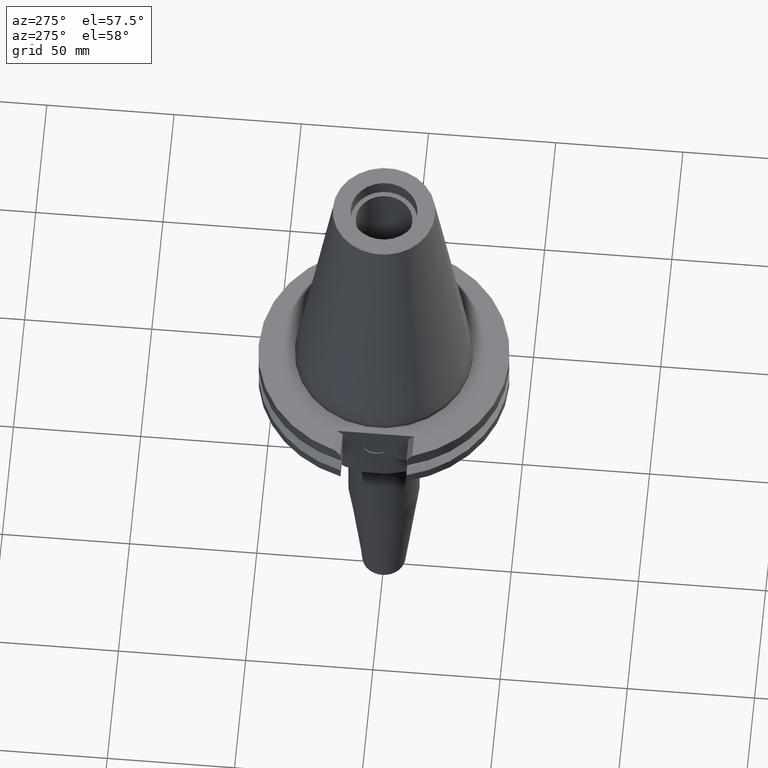
[diagram: clean part render]
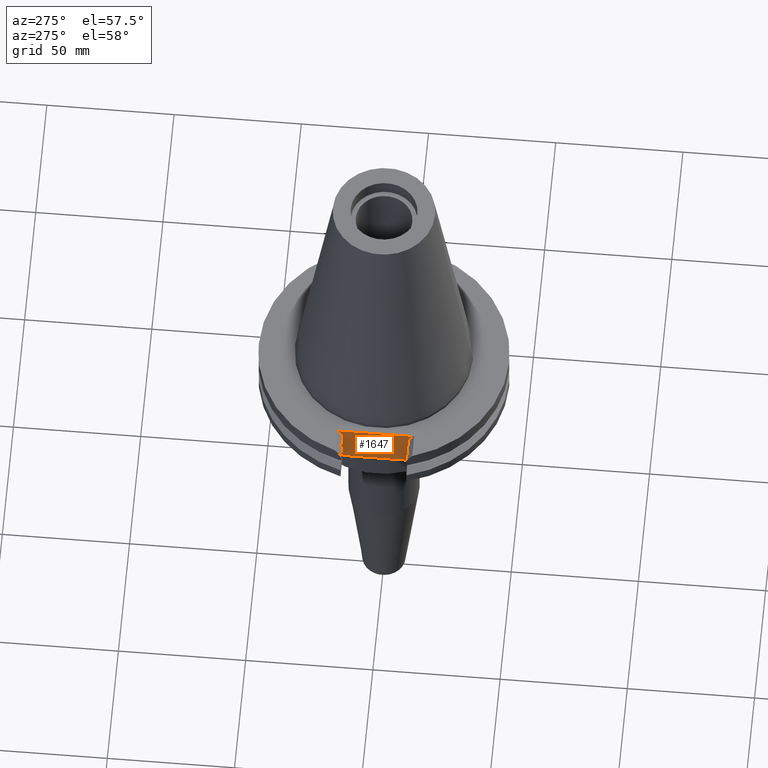
[diagram: same view with one face highlighted and labeled with its STEP entity id]
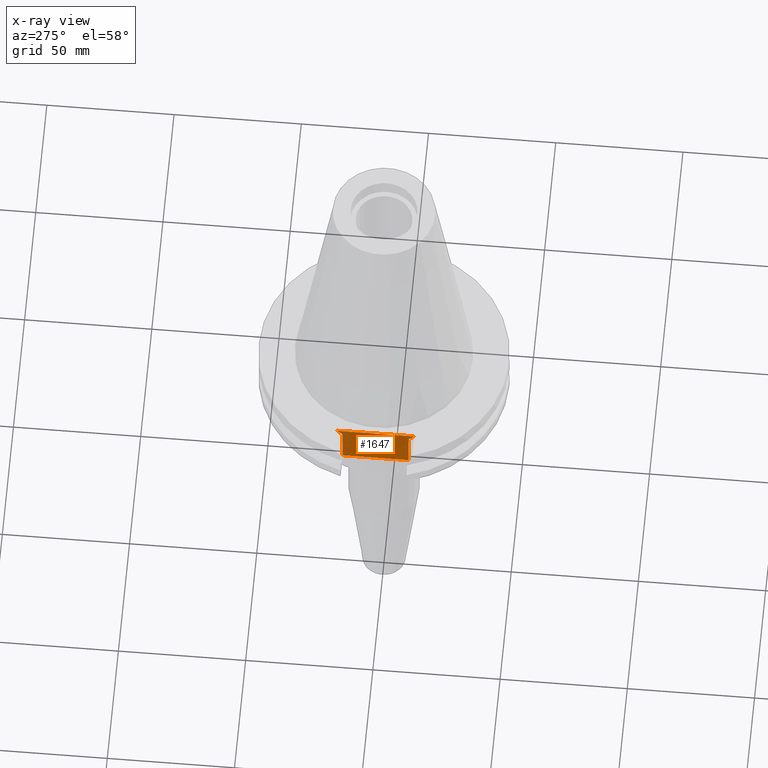
[diagram: x-ray of the same camera — body ghosted, the highlighted face saturated]
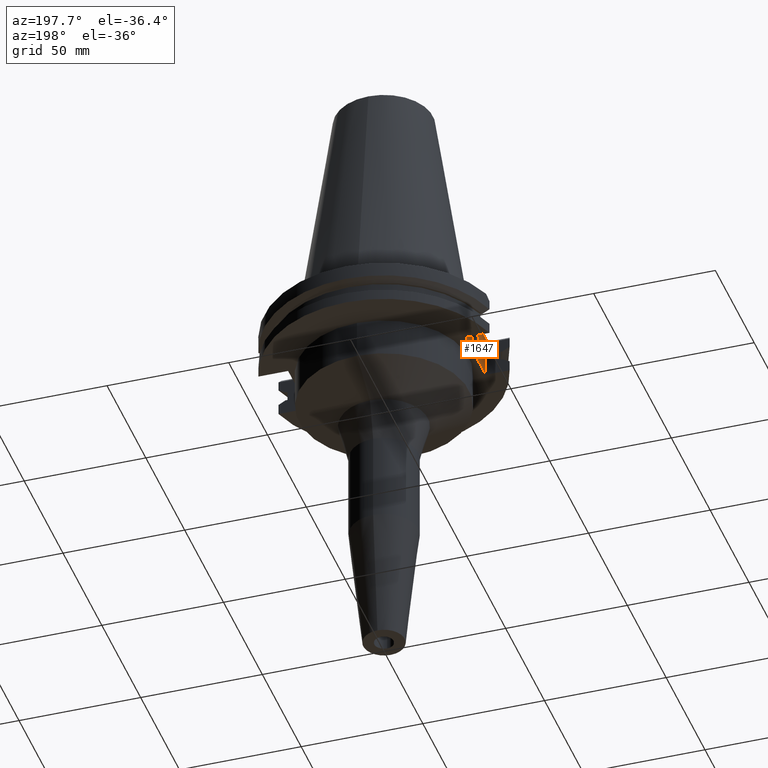
[diagram: same view with one face highlighted and labeled with its STEP entity id]
A machine part, auxiliary view. The second image highlights one B-rep face of the part: STEP entity #1647.
The next image is the same camera in x-ray: the body ghosted, the highlighted face saturated — about 0% of this face is hidden behind the body in this view.
A second angle (auxiliary view) of the same face is appended — the face is thin or edge-on in the first view.
In plain terms, the highlighted planar face has unit normal (1, 0, 0).
Its self-contained STEP definition (entity closure, byte-faithful):
#124=DIRECTION('',(0.E0,1.E0,0.E0));
#125=VECTOR('',#124,3.031E1);
#126=CARTESIAN_POINT('',(-3.768E1,-1.5155E1,-1.5E0));
#127=LINE('',#126,#125);
#318=DIRECTION('',(0.E0,1.E0,0.E0));
#319=VECTOR('',#318,2.591E1);
#320=CARTESIAN_POINT('',(-3.768E1,-1.2955E1,-1.905E1));
#321=LINE('',#320,#319);
#325=DIRECTION('',(0.E0,7.071067811865E-1,7.071067811865E-1));
#326=VECTOR('',#325,3.111269837221E0);
#327=CARTESIAN_POINT('',(-3.768E1,1.2955E1,-3.7E0));
#328=LINE('',#327,#326);
#332=DIRECTION('',(0.E0,7.071067811865E-1,-7.071067811865E-1));
#333=VECTOR('',#332,3.111269837221E0);
#334=CARTESIAN_POINT('',(-3.768E1,-1.5155E1,-1.5E0));
#335=LINE('',#334,#333);
#339=CARTESIAN_POINT('',(-3.768E1,0.E0,-1.118E1));
#340=DIRECTION('',(-1.E0,0.E0,0.E0));
#341=DIRECTION('',(0.E0,0.E0,1.E0));
#342=AXIS2_PLACEMENT_3D('',#339,#340,#341);
#347=CARTESIAN_POINT('',(-3.768E1,0.E0,-1.118E1));
#348=DIRECTION('',(-1.E0,0.E0,0.E0));
#349=DIRECTION('',(0.E0,0.E0,-1.E0));
#350=AXIS2_PLACEMENT_3D('',#347,#348,#349);
#376=DIRECTION('',(0.E0,0.E0,-1.E0));
#377=VECTOR('',#376,1.535E1);
#378=CARTESIAN_POINT('',(-3.768E1,1.2955E1,-3.7E0));
#379=LINE('',#378,#377);
#640=DIRECTION('',(0.E0,0.E0,1.E0));
#641=VECTOR('',#640,1.535E1);
#642=CARTESIAN_POINT('',(-3.768E1,-1.2955E1,-1.905E1));
#643=LINE('',#642,#641);
#1270=CARTESIAN_POINT('',(-3.768E1,1.2955E1,-1.905E1));
#1271=VERTEX_POINT('',#1270);
#1272=CARTESIAN_POINT('',(-3.768E1,-1.2955E1,-1.905E1));
#1273=VERTEX_POINT('',#1272);
#1310=CARTESIAN_POINT('',(-3.768E1,-1.2955E1,-3.7E0));
#1311=VERTEX_POINT('',#1310);
#1323=CARTESIAN_POINT('',(-3.768E1,1.2955E1,-3.7E0));
#1324=VERTEX_POINT('',#1323);
#1325=CARTESIAN_POINT('',(-3.768E1,1.5155E1,-1.5E0));
#1326=VERTEX_POINT('',#1325);
#1327=CARTESIAN_POINT('',(-3.768E1,-1.5155E1,-1.5E0));
#1328=VERTEX_POINT('',#1327);
#1329=CARTESIAN_POINT('',(-3.768E1,0.E0,-6.4175E0));
#1330=CARTESIAN_POINT('',(-3.768E1,0.E0,-1.59425E1));
#1331=VERTEX_POINT('',#1329);
#1332=VERTEX_POINT('',#1330);
#1625=CARTESIAN_POINT('',(-3.768E1,0.E0,0.E0));
#1626=DIRECTION('',(1.E0,0.E0,0.E0));
#1627=DIRECTION('',(0.E0,-1.E0,0.E0));
#1628=AXIS2_PLACEMENT_3D('',#1625,#1626,#1627);
#1629=PLANE('',#1628);
#1630=ORIENTED_EDGE('',*,*,#1533,.T.);
#1632=ORIENTED_EDGE('',*,*,#1631,.F.);
#1633=ORIENTED_EDGE('',*,*,#1617,.T.);
#1634=ORIENTED_EDGE('',*,*,#1483,.F.);
#1636=ORIENTED_EDGE('',*,*,#1635,.T.);
#1638=ORIENTED_EDGE('',*,*,#1637,.F.);
#1639=EDGE_LOOP('',(#1630,#1632,#1633,#1634,#1636,#1638));
#1640=FACE_OUTER_BOUND('',#1639,.F.);
#1642=ORIENTED_EDGE('',*,*,#1641,.T.);
#1644=ORIENTED_EDGE('',*,*,#1643,.T.);
#1645=EDGE_LOOP('',(#1642,#1644));
#1646=FACE_BOUND('',#1645,.F.);
#343=CIRCLE('',#342,4.7625E0);
#351=CIRCLE('',#350,4.7625E0);
#1483=EDGE_CURVE('',#1328,#1326,#127,.T.);
#1533=EDGE_CURVE('',#1273,#1271,#321,.T.);
#1617=EDGE_CURVE('',#1324,#1326,#328,.T.);
#1631=EDGE_CURVE('',#1324,#1271,#379,.T.);
#1635=EDGE_CURVE('',#1328,#1311,#335,.T.);
#1637=EDGE_CURVE('',#1273,#1311,#643,.T.);
#1641=EDGE_CURVE('',#1331,#1332,#343,.T.);
#1643=EDGE_CURVE('',#1332,#1331,#351,.T.);
#1647=ADVANCED_FACE('',(#1640,#1646),#1629,.F.);